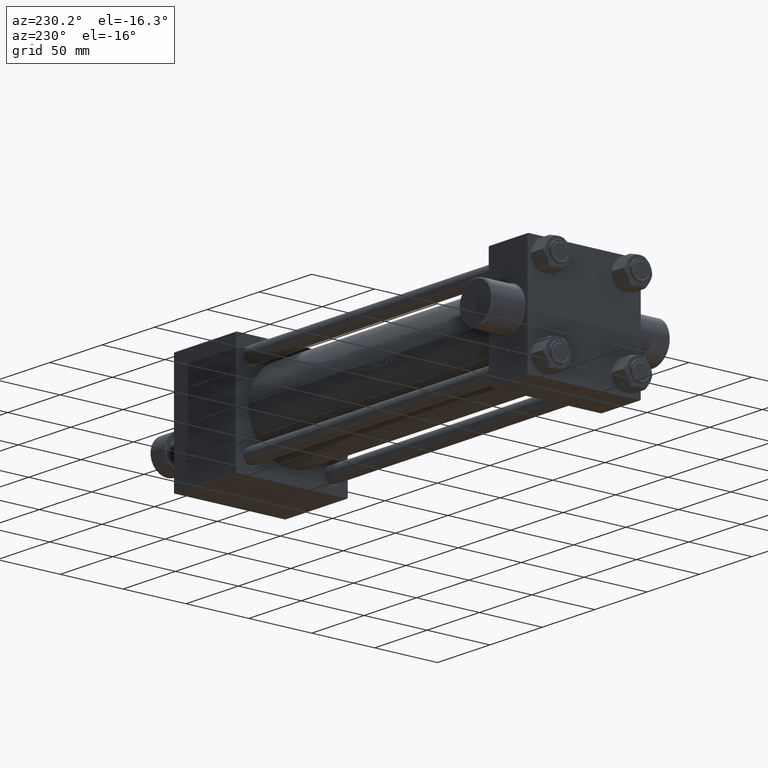
[diagram: clean part render]
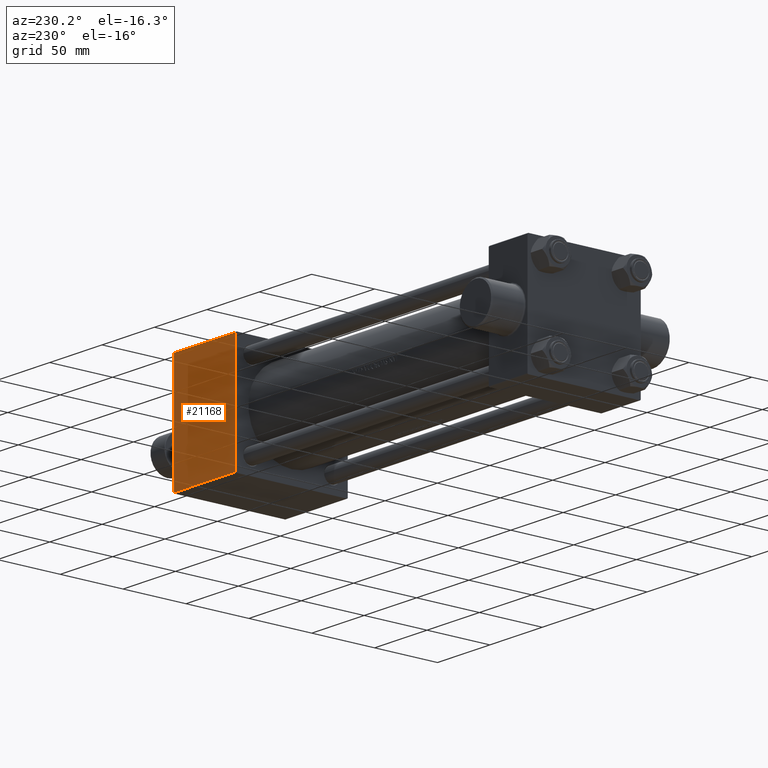
[diagram: same view with one face highlighted and labeled with its STEP entity id]
A machine part, auxiliary view. The second image highlights one B-rep face of the part: STEP entity #21168.
In plain terms, the highlighted planar face has unit normal (0, 1, 0).
Its self-contained STEP definition (entity closure, byte-faithful):
#849 = EDGE_CURVE ( 'NONE', #20190, #23274, #12826, .T. ) ;
#908 = CARTESIAN_POINT ( 'NONE',  ( 337.9999999999999432, 44.50000000000000711, -44.49999999999997868 ) ) ;
#1420 = EDGE_CURVE ( 'NONE', #4283, #25464, #22211, .T. ) ;
#2547 = FACE_OUTER_BOUND ( 'NONE', #35297, .T. ) ;
#4214 = DIRECTION ( 'NONE',  ( 0.000000000000000000, 0.000000000000000000, -1.000000000000000000 ) ) ;
#4283 = VERTEX_POINT ( 'NONE', #4505 ) ;
#4505 = CARTESIAN_POINT ( 'NONE',  ( 278.9999999999999432, 44.50000000000000711, 44.50000000000000711 ) ) ;
#4581 = VECTOR ( 'NONE', #4214, 1000.000000000000000 ) ;
#5843 = VECTOR ( 'NONE', #12255, 1000.000000000000000 ) ;
#11065 = CARTESIAN_POINT ( 'NONE',  ( 337.9999999999999432, 44.50000000000000711, 45.00000000000000711 ) ) ;
#12255 = DIRECTION ( 'NONE',  ( 1.000000000000000000, 0.000000000000000000, 0.000000000000000000 ) ) ;
#12370 = ORIENTED_EDGE ( 'NONE', *, *, #13686, .T. ) ;
#12826 = LINE ( 'NONE', #31261, #39000 ) ;
#12888 = LINE ( 'NONE', #33705, #31004 ) ;
#13063 = DIRECTION ( 'NONE',  ( -1.000000000000000000, 0.000000000000000000, 0.000000000000000000 ) ) ;
#13203 = ORIENTED_EDGE ( 'NONE', *, *, #15345, .F. ) ;
#13402 = DIRECTION ( 'NONE',  ( -0.000000000000000000, 1.000000000000000000, 0.000000000000000000 ) ) ;
#13686 = EDGE_CURVE ( 'NONE', #25464, #20190, #29017, .T. ) ;
#14205 = CARTESIAN_POINT ( 'NONE',  ( 278.9999999999999432, 44.50000000000000711, -44.49999999999997868 ) ) ;
#15345 = EDGE_CURVE ( 'NONE', #4283, #23274, #12888, .T. ) ;
#15828 = ORIENTED_EDGE ( 'NONE', *, *, #849, .T. ) ;
#17109 = CARTESIAN_POINT ( 'NONE',  ( 337.9999999999999432, 44.50000000000000711, 44.50000000000000711 ) ) ;
#20190 = VERTEX_POINT ( 'NONE', #908 ) ;
#21168 = ADVANCED_FACE ( 'NONE', ( #2547 ), #31362, .T. ) ;
#22211 = LINE ( 'NONE', #40646, #5843 ) ;
#23274 = VERTEX_POINT ( 'NONE', #14205 ) ;
#25464 = VERTEX_POINT ( 'NONE', #17109 ) ;
#29017 = LINE ( 'NONE', #11065, #4581 ) ;
#30208 = ORIENTED_EDGE ( 'NONE', *, *, #1420, .T. ) ;
#31004 = VECTOR ( 'NONE', #34399, 1000.000000000000000 ) ;
#31261 = CARTESIAN_POINT ( 'NONE',  ( 337.9999999999999432, 44.50000000000000711, -44.50000000000000711 ) ) ;
#31362 = PLANE ( 'NONE',  #44060 ) ;
#33705 = CARTESIAN_POINT ( 'NONE',  ( 278.9999999999999432, 44.50000000000000711, 45.00000000000000711 ) ) ;
#34399 = DIRECTION ( 'NONE',  ( 0.000000000000000000, 0.000000000000000000, -1.000000000000000000 ) ) ;
#35297 = EDGE_LOOP ( 'NONE', ( #13203, #30208, #12370, #15828 ) ) ;
#39000 = VECTOR ( 'NONE', #13063, 1000.000000000000000 ) ;
#40646 = CARTESIAN_POINT ( 'NONE',  ( 337.9999999999999432, 44.50000000000000711, 44.50000000000000711 ) ) ;
#42251 = DIRECTION ( 'NONE',  ( 0.000000000000000000, -0.000000000000000000, 1.000000000000000000 ) ) ;
#44060 = AXIS2_PLACEMENT_3D ( 'NONE', #45806, #13402, #42251 ) ;
#45806 = CARTESIAN_POINT ( 'NONE',  ( 337.9999999999999432, 44.50000000000000711, 45.00000000000000711 ) ) ;